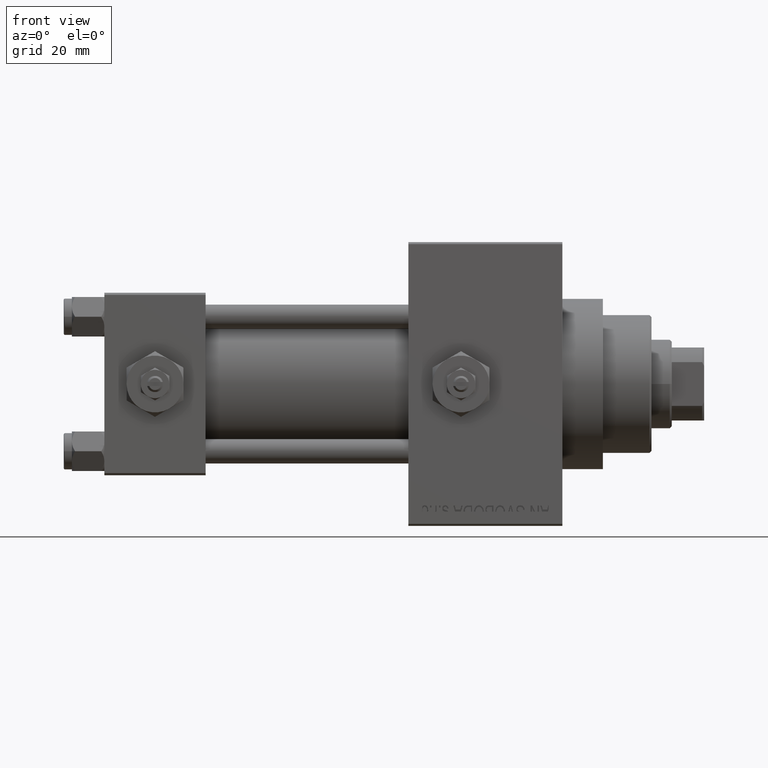
[diagram: clean part render]
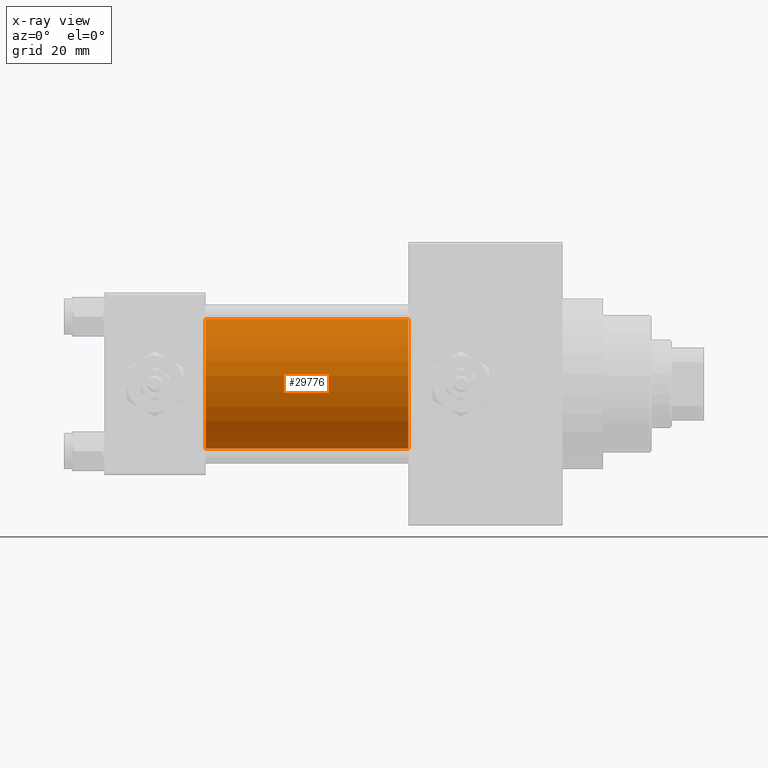
[diagram: x-ray — body ghosted, one internal face saturated and labeled with its STEP entity id]
A machine part, front view, then the same camera in x-ray: the body is ghosted and one INTERNAL B-rep face — a face not visible from any outside direction — is saturated and labeled: STEP entity #29776.
In plain terms, the highlighted cylindrical surface (partial cylindrical patch) has radius 16 mm, axis along (-1, -0, -0).
Its self-contained STEP definition (entity closure, byte-faithful):
#33 = ORIENTED_EDGE ( 'NONE', *, *, #44861, .F. ) ;
#1417 = EDGE_CURVE ( 'NONE', #5755, #39481, #29264, .T. ) ;
#1675 = CARTESIAN_POINT ( 'NONE',  ( 75.00000000000001421, -2.602085213965210642E-15, 16.00000000000000000 ) ) ;
#2362 = ORIENTED_EDGE ( 'NONE', *, *, #1417, .F. ) ;
#2536 = DIRECTION ( 'NONE',  ( -1.000000000000000000, -0.000000000000000000, -0.000000000000000000 ) ) ;
#4873 = EDGE_LOOP ( 'NONE', ( #36324, #28656, #33, #2362 ) ) ;
#5755 = VERTEX_POINT ( 'NONE', #1675 ) ;
#6453 = DIRECTION ( 'NONE',  ( -1.000000000000000000, -0.000000000000000000, -0.000000000000000000 ) ) ;
#9326 = CIRCLE ( 'NONE', #26720, 16.00000000000000000 ) ;
#17494 = EDGE_CURVE ( 'NONE', #37057, #19949, #17806, .T. ) ;
#17806 = LINE ( 'NONE', #29197, #26861 ) ;
#19310 = VECTOR ( 'NONE', #6453, 1000.000000000000000 ) ;
#19664 = CARTESIAN_POINT ( 'NONE',  ( 75.00000000000001421, -2.602085213965210642E-15, 0.000000000000000000 ) ) ;
#19949 = VERTEX_POINT ( 'NONE', #41174 ) ;
#22831 = CARTESIAN_POINT ( 'NONE',  ( 25.00000000000000000, -2.602085213965210642E-15, 0.000000000000000000 ) ) ;
#25800 = DIRECTION ( 'NONE',  ( 1.000000000000000000, 0.000000000000000000, 0.000000000000000000 ) ) ;
#26720 = AXIS2_PLACEMENT_3D ( 'NONE', #19664, #39008, #31790 ) ;
#26861 = VECTOR ( 'NONE', #48078, 1000.000000000000000 ) ;
#28656 = ORIENTED_EDGE ( 'NONE', *, *, #17494, .T. ) ;
#29197 = CARTESIAN_POINT ( 'NONE',  ( 75.00000000000001421, -6.426503353294456087E-16, -16.00000000000000000 ) ) ;
#29264 = LINE ( 'NONE', #44418, #19310 ) ;
#29315 = FACE_OUTER_BOUND ( 'NONE', #4873, .T. ) ;
#29776 = ADVANCED_FACE ( 'NONE', ( #29315 ), #48198, .F. ) ;
#29958 = EDGE_CURVE ( 'NONE', #5755, #37057, #9326, .T. ) ;
#30056 = CARTESIAN_POINT ( 'NONE',  ( 25.00000000000000000, -2.602085213965210642E-15, 16.00000000000000000 ) ) ;
#30696 = AXIS2_PLACEMENT_3D ( 'NONE', #44710, #2536, #32317 ) ;
#31790 = DIRECTION ( 'NONE',  ( 0.000000000000000000, 0.000000000000000000, -1.000000000000000000 ) ) ;
#32317 = DIRECTION ( 'NONE',  ( 0.000000000000000000, 0.000000000000000000, 1.000000000000000000 ) ) ;
#33389 = CIRCLE ( 'NONE', #44495, 16.00000000000000000 ) ;
#36324 = ORIENTED_EDGE ( 'NONE', *, *, #29958, .T. ) ;
#37057 = VERTEX_POINT ( 'NONE', #41930 ) ;
#39008 = DIRECTION ( 'NONE',  ( 1.000000000000000000, 0.000000000000000000, 0.000000000000000000 ) ) ;
#39481 = VERTEX_POINT ( 'NONE', #30056 ) ;
#41174 = CARTESIAN_POINT ( 'NONE',  ( 25.00000000000000000, -6.426503353294456087E-16, -16.00000000000000000 ) ) ;
#41930 = CARTESIAN_POINT ( 'NONE',  ( 75.00000000000001421, -6.426503353294456087E-16, -16.00000000000000000 ) ) ;
#44418 = CARTESIAN_POINT ( 'NONE',  ( 75.00000000000001421, -2.602085213965210642E-15, 16.00000000000000000 ) ) ;
#44495 = AXIS2_PLACEMENT_3D ( 'NONE', #22831, #25800, #45181 ) ;
#44710 = CARTESIAN_POINT ( 'NONE',  ( 75.00000000000001421, -2.602085213965210642E-15, 0.000000000000000000 ) ) ;
#44861 = EDGE_CURVE ( 'NONE', #39481, #19949, #33389, .T. ) ;
#45181 = DIRECTION ( 'NONE',  ( 0.000000000000000000, 0.000000000000000000, -1.000000000000000000 ) ) ;
#48078 = DIRECTION ( 'NONE',  ( -1.000000000000000000, -0.000000000000000000, -0.000000000000000000 ) ) ;
#48198 = CYLINDRICAL_SURFACE ( 'NONE', #30696, 16.00000000000000000 ) ;